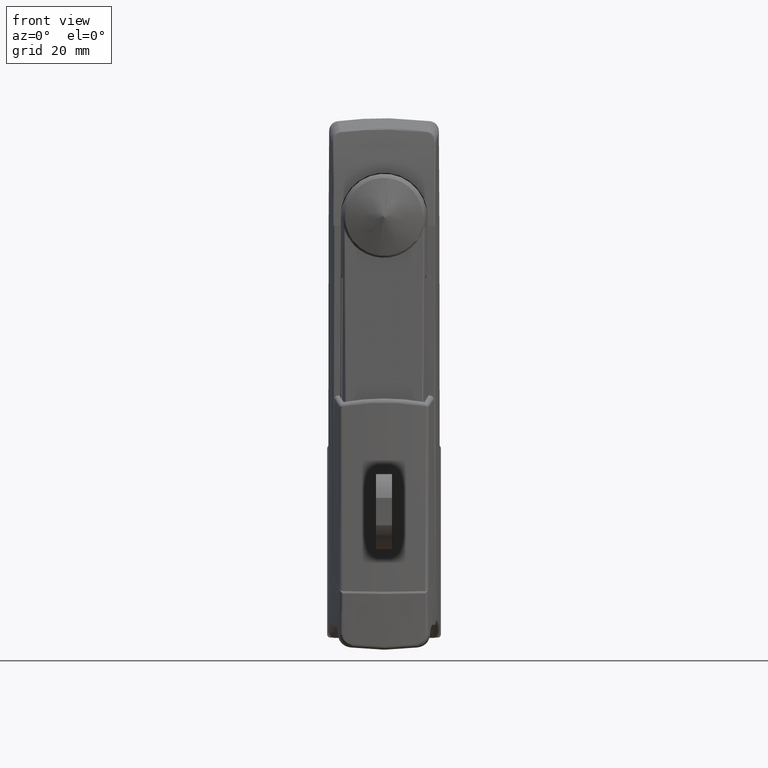
[diagram: clean part render]
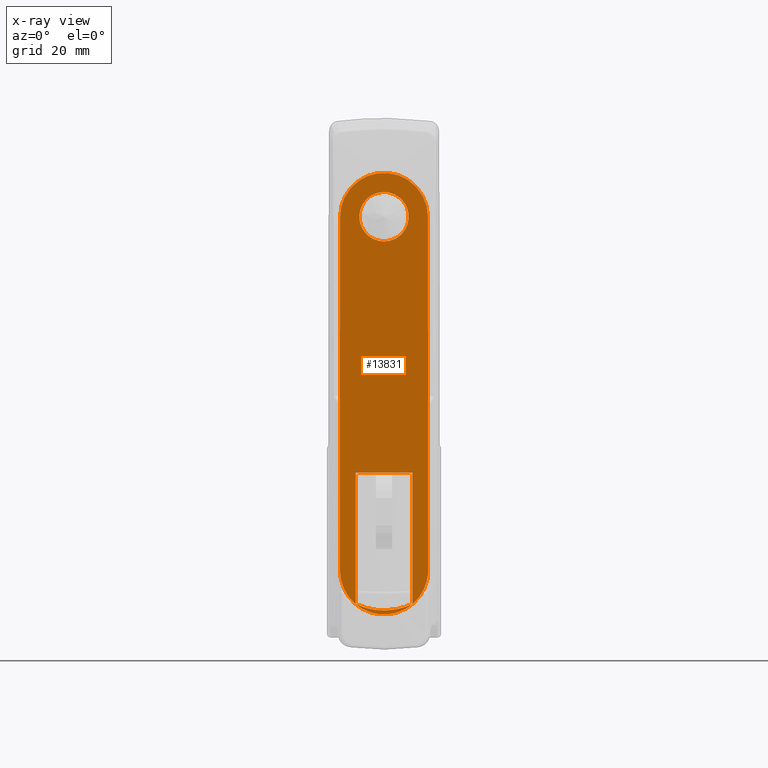
[diagram: x-ray — body ghosted, one internal face saturated and labeled with its STEP entity id]
A machine part, front view, then the same camera in x-ray: the body is ghosted and one INTERNAL B-rep face — a face not visible from any outside direction — is saturated and labeled: STEP entity #13831.
In plain terms, the highlighted face is a freeform B-spline surface patch.
Its self-contained STEP definition (entity closure, byte-faithful):
#11914=CARTESIAN_POINT('',(-5.500000000012050,0.0,7.600000000000000));
#11915=VERTEX_POINT('',#11914);
#11916=CARTESIAN_POINT('',(-5.500000000012003,5.326909800585702,5.420704011143132));
#11917=VERTEX_POINT('',#11916);
#11918=CARTESIAN_POINT('',(-5.500000000012050,0.0,7.600000000000000));
#11919=CARTESIAN_POINT('',(-5.500000000012049,3.109241593219904,7.600000000000000));
#11920=CARTESIAN_POINT('',(-5.500000000012049,5.326909800585733,5.420704011143168));
#11928=(BOUNDED_CURVE()B_SPLINE_CURVE(2,(#11918,#11919,#11920),.UNSPECIFIED.,.F.,.U.)B_SPLINE_CURVE_WITH_KNOTS((3,3),(0.500000000000000,0.623683225481971),.UNSPECIFIED.)CURVE()GEOMETRIC_REPRESENTATION_ITEM()RATIONAL_B_SPLINE_CURVE((1.0,0.855096087901422,0.853569641669309))REPRESENTATION_ITEM(''));
#11929=EDGE_CURVE('',#11915,#11917,#11928,.T.);
#11970=CARTESIAN_POINT('',(-5.500000000012003,-5.326909800585701,-5.420704011143132));
#11971=VERTEX_POINT('',#11970);
#11977=CARTESIAN_POINT('',(-5.500000000012003,-5.326909800585701,-5.420704011143132));
#11978=CARTESIAN_POINT('',(-5.500000000012050,-7.600000000000000,-3.186944994605080));
#11979=CARTESIAN_POINT('',(-5.500000000012050,-7.600000000000000,0.0));
#11980=CARTESIAN_POINT('',(-5.500000000012051,-7.600000000000000,7.600000000000000));
#11981=CARTESIAN_POINT('',(-5.500000000012050,0.0,7.600000000000000));
#11989=(BOUNDED_CURVE()B_SPLINE_CURVE(2,(#11977,#11978,#11979,#11980,#11981),.UNSPECIFIED.,.F.,.U.)B_SPLINE_CURVE_WITH_KNOTS((3,2,3),(0.123683225481971,0.250000000000000,0.500000000000000),.UNSPECIFIED.)CURVE()GEOMETRIC_REPRESENTATION_ITEM()RATIONAL_B_SPLINE_CURVE((0.853569641669309,0.852010693285126,1.0,0.707106781186547,1.0))REPRESENTATION_ITEM(''));
#11990=EDGE_CURVE('',#11971,#11915,#11989,.T.);
#12013=CARTESIAN_POINT('',(-5.500000000012050,0.0,-7.600000000000000));
#12014=VERTEX_POINT('',#12013);
#12015=CARTESIAN_POINT('',(-5.500000000012003,5.326909800585703,5.420704011143132));
#12016=CARTESIAN_POINT('',(-5.500000000012050,7.600000000000000,3.186944994605082));
#12017=CARTESIAN_POINT('',(-5.500000000012050,7.600000000000000,0.0));
#12018=CARTESIAN_POINT('',(-5.500000000012051,7.600000000000000,-7.600000000000000));
#12019=CARTESIAN_POINT('',(-5.500000000012050,0.0,-7.600000000000000));
#12027=(BOUNDED_CURVE()B_SPLINE_CURVE(2,(#12015,#12016,#12017,#12018,#12019),.UNSPECIFIED.,.F.,.U.)B_SPLINE_CURVE_WITH_KNOTS((3,2,3),(0.623683225481971,0.750000000000000,1.0),.UNSPECIFIED.)CURVE()GEOMETRIC_REPRESENTATION_ITEM()RATIONAL_B_SPLINE_CURVE((0.853569641669309,0.852010693285125,1.0,0.707106781186547,1.0))REPRESENTATION_ITEM(''));
#12028=EDGE_CURVE('',#11917,#12014,#12027,.T.);
#12030=CARTESIAN_POINT('',(-5.500000000012050,0.0,-7.600000000000000));
#12031=CARTESIAN_POINT('',(-5.500000000012050,-3.109241593219906,-7.600000000000001));
#12032=CARTESIAN_POINT('',(-5.500000000012051,-5.326909800585736,-5.420704011143169));
#12040=(BOUNDED_CURVE()B_SPLINE_CURVE(2,(#12030,#12031,#12032),.UNSPECIFIED.,.F.,.U.)B_SPLINE_CURVE_WITH_KNOTS((3,3),(0.0,0.123683225481971),.UNSPECIFIED.)CURVE()GEOMETRIC_REPRESENTATION_ITEM()RATIONAL_B_SPLINE_CURVE((1.0,0.855096087901422,0.853569641669309))REPRESENTATION_ITEM(''));
#12041=EDGE_CURVE('',#12014,#11971,#12040,.T.);
#13686=CARTESIAN_POINT('',(-5.500000000000090,-14.950142217047500,-129.305787019094110));
#13687=CARTESIAN_POINT('',(-5.500000000000090,14.950142946180160,-129.305787019094110));
#13688=CARTESIAN_POINT('',(-5.500000000000090,-14.950142217047500,20.293800862226998));
#13689=CARTESIAN_POINT('',(-5.500000000000090,14.950142946180160,20.293800862226998));
#13690=B_SPLINE_SURFACE_WITH_KNOTS('',1,1,((#13686,#13688),(#13687,#13689)),.UNSPECIFIED.,.F.,.F.,.U.,(2,2),(2,2),(0.0,29.900285163227661),(0.0,149.599587881321100),.UNSPECIFIED.);
#13691=CARTESIAN_POINT('',(-5.500000000000090,13.592274088300760,-108.899222409230010));
#13692=VERTEX_POINT('',#13691);
#13693=CARTESIAN_POINT('',(-5.500000000000090,13.499994861165360,-0.011779155682424));
#13694=VERTEX_POINT('',#13693);
#13695=CARTESIAN_POINT('',(-5.500000000000090,13.592274088300760,-108.899222409230010));
#13696=CARTESIAN_POINT('',(-5.500000000000090,13.591571165638960,-108.432619849802410));
#13697=CARTESIAN_POINT('',(-5.500000000000090,13.583585274704699,-103.122519607909400));
#13698=CARTESIAN_POINT('',(-5.500000000000090,13.570201202337261,-94.054019577383201));
#13699=CARTESIAN_POINT('',(-5.500000000000090,13.553241845598000,-81.693501625597392));
#13700=CARTESIAN_POINT('',(-5.500000000000090,13.539066881364240,-70.417715934326594));
#13701=CARTESIAN_POINT('',(-5.500000000000090,13.526519975982559,-59.141407620673000));
#13702=CARTESIAN_POINT('',(-5.500000000000090,13.516796155539200,-48.803285453039400));
#13703=CARTESIAN_POINT('',(-5.500000000000090,13.509954543279800,-39.873528040673399));
#13704=CARTESIAN_POINT('',(-5.500000000000090,13.505324707168860,-32.352446937734797));
#13705=CARTESIAN_POINT('',(-5.500000000000090,13.502237143331399,-25.771524061110700));
#13706=CARTESIAN_POINT('',(-5.500000000000090,13.500227188221000,-19.660903770915951));
#13707=CARTESIAN_POINT('',(-5.500000000000090,13.499104136707160,-14.020485555284480));
#13708=CARTESIAN_POINT('',(-5.500000000000090,13.498743041578720,-8.380564060496999));
#13709=CARTESIAN_POINT('',(-5.500000000000090,13.499093180012220,-3.711013230216085));
#13710=CARTESIAN_POINT('',(-5.500000000000090,13.499598976610040,-0.921506949291047));
#13711=CARTESIAN_POINT('',(-5.500000000000090,13.499994861165360,-0.011779155682443));
#13712=B_SPLINE_CURVE_WITH_KNOTS('',3,(#13695,#13696,#13697,#13698,#13699,#13700,#13701,#13702,#13703,#13704,#13705,#13706,#13707,#13708,#13709,#13710,#13711),.UNSPECIFIED.,.F.,.U.,(4,1,1,1,1,1,1,1,1,1,1,1,1,1,4),(0.0,0.012855555573557,0.146300715920764,0.249849895491047,0.353405111669571,0.456964333974477,0.560527858938167,0.638234692220055,0.702991479262319,0.767744005679142,0.819548169972390,0.871347464624640,0.923145272465501,0.974935748451005,1.0),.UNSPECIFIED.);
#13713=EDGE_CURVE('',#13692,#13694,#13712,.T.);
#13714=ORIENTED_EDGE('',*,*,#13713,.F.);
#13715=CARTESIAN_POINT('',(-5.500000000000090,-13.592274088314500,-108.899222418351800));
#13716=VERTEX_POINT('',#13715);
#13717=CARTESIAN_POINT('',(-5.500000000000090,13.592274088300760,-108.899222409230010));
#13718=CARTESIAN_POINT('',(-5.500000000000096,13.594241111740500,-110.012331068110800));
#13719=CARTESIAN_POINT('',(-5.500000000000092,13.363001144400410,-111.904764703902800));
#13720=CARTESIAN_POINT('',(-5.500000000000084,12.511827616035070,-114.388406198348310));
#13721=CARTESIAN_POINT('',(-5.500000000000103,11.369326778745039,-116.499920440071190));
#13722=CARTESIAN_POINT('',(-5.500000000000053,9.763696910365621,-118.509829922049510));
#13723=CARTESIAN_POINT('',(-5.500000000000101,7.828007538391771,-120.120405694323910));
#13724=CARTESIAN_POINT('',(-5.500000000000089,5.643611907989906,-121.359244837014400));
#13725=CARTESIAN_POINT('',(-5.500000000000097,3.169215623150294,-122.245714991645800));
#13726=CARTESIAN_POINT('',(-5.500000000000084,0.557486492588914,-122.584464005472300));
#13727=CARTESIAN_POINT('',(-5.500000000000090,-1.670564137390577,-122.447183216168000));
#13728=CARTESIAN_POINT('',(-5.500000000000092,-3.476737213376141,-122.099102736524600));
#13729=CARTESIAN_POINT('',(-5.500000000000092,-5.437123028742163,-121.450881551279290));
#13730=CARTESIAN_POINT('',(-5.500000000000089,-7.804018729810801,-120.184584860437500));
#13731=CARTESIAN_POINT('',(-5.500000000000091,-9.925748825280259,-118.351811656189000));
#13732=CARTESIAN_POINT('',(-5.500000000000091,-11.479676811544129,-116.305273179218900));
#13733=CARTESIAN_POINT('',(-5.500000000000090,-12.582501512553799,-114.237077081410110));
#13734=CARTESIAN_POINT('',(-5.500000000000092,-13.386477112518280,-111.793467203298210));
#13735=CARTESIAN_POINT('',(-5.500000000000084,-13.593970941130880,-109.900996940826300));
#13736=CARTESIAN_POINT('',(-5.500000000000090,-13.592274088314500,-108.899222418351800));
#13737=B_SPLINE_CURVE_WITH_KNOTS('',3,(#13717,#13718,#13719,#13720,#13721,#13722,#13723,#13724,#13725,#13726,#13727,#13728,#13729,#13730,#13731,#13732,#13733,#13734,#13735,#13736),.UNSPECIFIED.,.F.,.U.,(4,1,1,1,1,1,1,1,1,1,1,1,1,1,1,1,1,4),(0.000000226686332,3.339261199788609,5.676745020475707,7.847294134445392,10.518742815953591,13.357130834027050,15.360618068349529,18.032021019292070,21.204363647634040,23.207948841037972,24.710637977082332,26.714227733695711,29.385517602661231,32.724840909836708,35.062330652246693,37.065914226132342,39.737359702503397,42.742658786218151),.UNSPECIFIED.);
#13738=EDGE_CURVE('',#13692,#13716,#13737,.T.);
#13739=ORIENTED_EDGE('',*,*,#13738,.T.);
#13740=CARTESIAN_POINT('',(-5.500000000000090,-13.500000000000000,-2.517986E-013));
#13741=VERTEX_POINT('',#13740);
#13742=CARTESIAN_POINT('',(-5.500000000000090,-13.500000000000000,-2.706724E-013));
#13743=CARTESIAN_POINT('',(-5.500000000000090,-13.499600401071520,-0.913654178225550));
#13744=CARTESIAN_POINT('',(-5.500000000000090,-13.499093474425640,-3.707086844669295));
#13745=CARTESIAN_POINT('',(-5.500000000000090,-13.498743041578740,-8.380564060496999));
#13746=CARTESIAN_POINT('',(-5.500000000000090,-13.499104136707180,-14.020485555284480));
#13747=CARTESIAN_POINT('',(-5.500000000000090,-13.500227188221000,-19.660903770915951));
#13748=CARTESIAN_POINT('',(-5.500000000000090,-13.502237143331399,-25.771524061110700));
#13749=CARTESIAN_POINT('',(-5.500000000000090,-13.505324707168841,-32.352446937734797));
#13750=CARTESIAN_POINT('',(-5.500000000000090,-13.509954543279800,-39.873528040673399));
#13751=CARTESIAN_POINT('',(-5.500000000000090,-13.516796155539200,-48.803285453039400));
#13752=CARTESIAN_POINT('',(-5.500000000000090,-13.526519975982540,-59.141407620673000));
#13753=CARTESIAN_POINT('',(-5.500000000000090,-13.539066881364240,-70.417715934326495));
#13754=CARTESIAN_POINT('',(-5.500000000000090,-13.553241845598000,-81.693501625597293));
#13755=CARTESIAN_POINT('',(-5.500000000000090,-13.570201202337261,-94.054019577383201));
#13756=CARTESIAN_POINT('',(-5.500000000000090,-13.583585274709179,-103.122519610949990));
#13757=CARTESIAN_POINT('',(-5.500000000000090,-13.591571165648100,-108.432619855883800));
#13758=CARTESIAN_POINT('',(-5.500000000000090,-13.592274088314500,-108.899222418351800));
#13759=B_SPLINE_CURVE_WITH_KNOTS('',3,(#13742,#13743,#13744,#13745,#13746,#13747,#13748,#13749,#13750,#13751,#13752,#13753,#13754,#13755,#13756,#13757,#13758),.UNSPECIFIED.,.F.,.U.,(4,1,1,1,1,1,1,1,1,1,1,1,1,1,4),(0.0,0.025169706067404,0.076954580100113,0.128746785195123,0.180540476940701,0.232339037800547,0.297084560215391,0.361834342794821,0.439532770863131,0.543085093806235,0.646633114555955,0.750177129612617,0.853715108713993,0.987145834872773,1.0),.UNSPECIFIED.);
#13760=EDGE_CURVE('',#13741,#13716,#13759,.T.);
#13761=ORIENTED_EDGE('',*,*,#13760,.F.);
#13762=CARTESIAN_POINT('',(-5.500000000000090,-13.500000000000000,-2.517986E-013));
#13763=CARTESIAN_POINT('',(-5.500000000000092,-13.500047166429200,0.718102377106807));
#13764=CARTESIAN_POINT('',(-5.500000000000096,-13.385145153855129,2.154294337572027));
#13765=CARTESIAN_POINT('',(-5.500000000000091,-12.938456319821260,3.984657976198643));
#13766=CARTESIAN_POINT('',(-5.500000000000091,-12.261539061650989,5.738991317475451));
#13767=CARTESIAN_POINT('',(-5.500000000000099,-11.336556511394230,7.443721770971135));
#13768=CARTESIAN_POINT('',(-5.500000000000081,-9.767201473980794,9.454164935152082));
#13769=CARTESIAN_POINT('',(-5.500000000000135,-7.904159786884389,11.040657598168799));
#13770=CARTESIAN_POINT('',(-5.500000000000044,-5.791506099364750,12.253566984863591));
#13771=CARTESIAN_POINT('',(-5.500000000000115,-3.463543324621312,13.150954967364260));
#13772=CARTESIAN_POINT('',(-5.500000000000083,-0.880812873582227,13.565516799102870));
#13773=CARTESIAN_POINT('',(-5.500000000000092,1.721298128330564,13.452258423144370));
#13774=CARTESIAN_POINT('',(-5.500000000000079,3.727994980697775,13.026400781433891));
#13775=CARTESIAN_POINT('',(-5.500000000000169,5.906322140860833,12.215425143172890));
#13776=CARTESIAN_POINT('',(-5.499999999999939,8.210452176340802,10.871050040180769));
#13777=CARTESIAN_POINT('',(-5.500000000000156,10.385686860752910,8.797178899278412));
#13778=CARTESIAN_POINT('',(-5.500000000000090,12.049103605395750,6.303760594068161));
#13779=CARTESIAN_POINT('',(-5.500000000000074,13.202617615110199,3.413105524889151));
#13780=CARTESIAN_POINT('',(-5.500000000000100,13.501419694871570,1.203492219771534));
#13781=CARTESIAN_POINT('',(-5.500000000000090,13.499994861165360,-0.011779155682424));
#13782=B_SPLINE_CURVE_WITH_KNOTS('',3,(#13762,#13763,#13764,#13765,#13766,#13767,#13768,#13769,#13770,#13771,#13772,#13773,#13774,#13775,#13776,#13777,#13778,#13779,#13780,#13781),.UNSPECIFIED.,.F.,.U.,(4,1,1,1,1,1,1,1,1,1,1,1,1,1,1,1,1,4),(0.000000224651885,2.154315649602779,4.308628658299710,5.634359445827691,7.788709693574155,10.108746206200760,13.257426185590690,15.080235632215190,17.400267911989761,20.714618923988681,22.868965530357180,25.189033011191789,26.846208835148619,29.829005319740830,33.143369732110337,35.794872317966693,38.777794593819529,42.423546316754759),.UNSPECIFIED.);
#13783=EDGE_CURVE('',#13741,#13694,#13782,.T.);
#13784=ORIENTED_EDGE('',*,*,#13783,.T.);
#13785=EDGE_LOOP('',(#13714,#13739,#13761,#13784));
#13786=FACE_OUTER_BOUND('',#13785,.T.);
#13787=CARTESIAN_POINT('',(-5.500000000012050,8.699880441169059,-78.750003574183197));
#13788=VERTEX_POINT('',#13787);
#13789=CARTESIAN_POINT('',(-5.500000000012050,-8.700120717768870,-78.750003574183197));
#13790=VERTEX_POINT('',#13789);
#13791=CARTESIAN_POINT('',(-5.500000000012050,8.699880441169059,-78.750003574183197));
#13792=CARTESIAN_POINT('',(-5.500000000012050,-8.700120717768870,-78.750003574183197));
#13793=QUASI_UNIFORM_CURVE('',1,(#13791,#13792),.UNSPECIFIED.,.F.,.U.);
#13794=EDGE_CURVE('',#13788,#13790,#13793,.T.);
#13795=ORIENTED_EDGE('',*,*,#13794,.T.);
#13796=CARTESIAN_POINT('',(-5.500000000012050,-8.700120717768870,-119.250005925306990));
#13797=VERTEX_POINT('',#13796);
#13798=CARTESIAN_POINT('',(-5.500000000012050,-8.700120717768870,-78.750003574183197));
#13799=CARTESIAN_POINT('',(-5.500000000012050,-8.700120717768870,-119.250005925306990));
#13800=QUASI_UNIFORM_CURVE('',1,(#13798,#13799),.UNSPECIFIED.,.F.,.U.);
#13801=EDGE_CURVE('',#13790,#13797,#13800,.T.);
#13802=ORIENTED_EDGE('',*,*,#13801,.T.);
#13803=CARTESIAN_POINT('',(-5.500000000012050,8.699880441169041,-119.250005925306990));
#13804=VERTEX_POINT('',#13803);
#13805=CARTESIAN_POINT('',(-5.500000000012050,8.699880441169091,-119.250005925307090));
#13806=CARTESIAN_POINT('',(-5.500000000012050,-0.000120138299907,-123.473189043590070));
#13807=CARTESIAN_POINT('',(-5.500000000012050,-8.700120717768929,-119.250005925307090));
#13815=(BOUNDED_CURVE()B_SPLINE_CURVE(2,(#13805,#13806,#13807),.UNSPECIFIED.,.F.,.U.)CURVE()GEOMETRIC_REPRESENTATION_ITEM()QUASI_UNIFORM_CURVE()RATIONAL_B_SPLINE_CURVE((1.0,0.899611005298004,1.0))REPRESENTATION_ITEM(''));
#13816=EDGE_CURVE('',#13804,#13797,#13815,.T.);
#13817=ORIENTED_EDGE('',*,*,#13816,.F.);
#13818=CARTESIAN_POINT('',(-5.500000000012050,8.699880441169041,-119.250005925306990));
#13819=CARTESIAN_POINT('',(-5.500000000012050,8.699880441169059,-78.750003574183197));
#13820=QUASI_UNIFORM_CURVE('',1,(#13818,#13819),.UNSPECIFIED.,.F.,.U.);
#13821=EDGE_CURVE('',#13804,#13788,#13820,.T.);
#13822=ORIENTED_EDGE('',*,*,#13821,.T.);
#13823=EDGE_LOOP('',(#13795,#13802,#13817,#13822));
#13824=FACE_BOUND('',#13823,.T.);
#13825=ORIENTED_EDGE('',*,*,#12041,.F.);
#13826=ORIENTED_EDGE('',*,*,#12028,.F.);
#13827=ORIENTED_EDGE('',*,*,#11929,.F.);
#13828=ORIENTED_EDGE('',*,*,#11990,.F.);
#13829=EDGE_LOOP('',(#13825,#13826,#13827,#13828));
#13830=FACE_BOUND('',#13829,.T.);
#13831=ADVANCED_FACE('',(#13786,#13824,#13830),#13690,.F.);